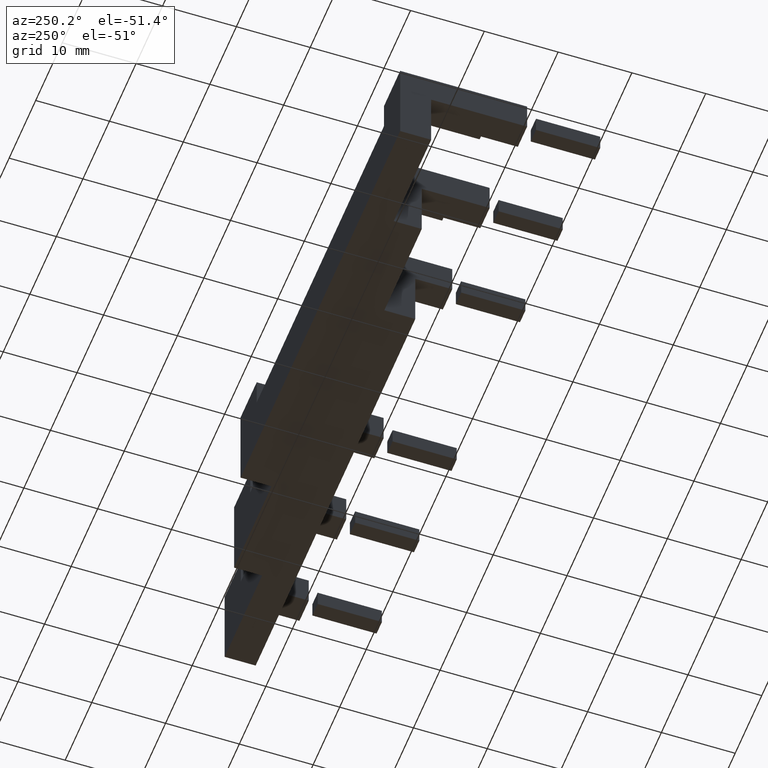
[diagram: clean part render]
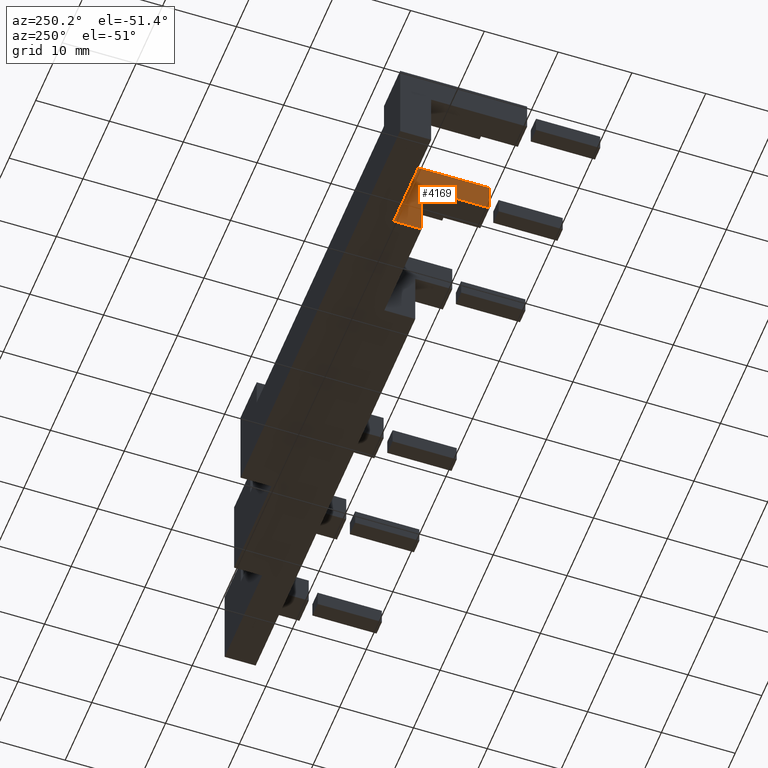
[diagram: same view with one face highlighted and labeled with its STEP entity id]
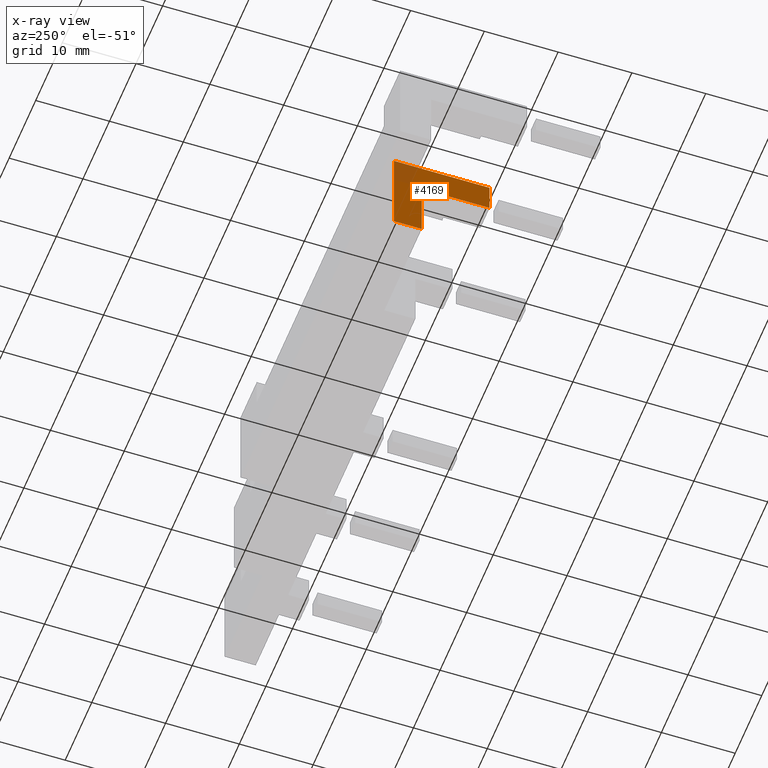
[diagram: x-ray of the same camera — body ghosted, the highlighted face saturated]
A machine part, auxiliary view. The second image highlights one B-rep face of the part: STEP entity #4169.
The next image is the same camera in x-ray: the body ghosted, the highlighted face saturated — about 13% of this face is hidden behind the body in this view.
In plain terms, the highlighted planar face has unit normal (-1, 0, 0).
Its self-contained STEP definition (entity closure, byte-faithful):
#2577=CARTESIAN_POINT('',(14.099999999999852,2.700062E-013,103.99999999999196));
#2578=VERTEX_POINT('',#2577);
#2609=CARTESIAN_POINT('',(14.099999999999682,2.842171E-013,95.79999999999194));
#2610=VERTEX_POINT('',#2609);
#2617=CARTESIAN_POINT('',(14.099999999999859,2.702054E-013,103.99999999999197));
#2618=DIRECTION('',(0.0,0.0,-1.0));
#2619=VECTOR('',#2618,8.200000000000003);
#2620=LINE('',#2617,#2619);
#2621=EDGE_CURVE('',#2578,#2610,#2620,.T.);
#2711=CARTESIAN_POINT('',(14.099999999999763,-3.799999999999216,95.799999999991954));
#2712=VERTEX_POINT('',#2711);
#2719=CARTESIAN_POINT('',(14.099999999999756,-3.799999999999216,95.79999999999194));
#2720=DIRECTION('',(0.0,1.0,0.0));
#2721=VECTOR('',#2720,3.799999999999487);
#2722=LINE('',#2719,#2721);
#2723=EDGE_CURVE('',#2712,#2610,#2722,.T.);
#4105=CARTESIAN_POINT('',(14.100000000000218,-12.999999999991548,108.09999999999192));
#4106=VERTEX_POINT('',#4105);
#4113=CARTESIAN_POINT('',(14.100000000000135,-12.999999999991548,103.99999999999196));
#4114=VERTEX_POINT('',#4113);
#4115=CARTESIAN_POINT('',(14.100000000000135,-12.999999999991548,103.99999999999196));
#4116=DIRECTION('',(0.0,0.0,1.0));
#4117=VECTOR('',#4116,4.099999999999994);
#4118=LINE('',#4115,#4117);
#4119=EDGE_CURVE('',#4114,#4106,#4118,.T.);
#4131=CARTESIAN_POINT('',(14.100000000000135,-12.999999999991548,103.99999999999196));
#4132=DIRECTION('',(-1.0,0.0,0.0));
#4133=DIRECTION('',(0.0,0.0,1.0));
#4134=AXIS2_PLACEMENT_3D('',#4131,#4132,#4133);
#4135=PLANE('',#4134);
#4136=CARTESIAN_POINT('',(14.099999999999946,2.557954E-013,108.09999999999194));
#4137=VERTEX_POINT('',#4136);
#4138=CARTESIAN_POINT('',(14.10000000000022,-12.999999999991562,108.09999999999194));
#4139=DIRECTION('',(0.0,1.0,0.0));
#4140=VECTOR('',#4139,12.999999999991818);
#4141=LINE('',#4138,#4140);
#4142=EDGE_CURVE('',#4106,#4137,#4141,.T.);
#4143=ORIENTED_EDGE('',*,*,#4142,.T.);
#4144=CARTESIAN_POINT('',(14.099999999999852,2.700062E-013,103.99999999999196));
#4145=DIRECTION('',(0.0,0.0,1.0));
#4146=VECTOR('',#4145,4.099999999999994);
#4147=LINE('',#4144,#4146);
#4148=EDGE_CURVE('',#2578,#4137,#4147,.T.);
#4149=ORIENTED_EDGE('',*,*,#4148,.F.);
#4150=ORIENTED_EDGE('',*,*,#2621,.T.);
#4151=ORIENTED_EDGE('',*,*,#2723,.F.);
#4152=CARTESIAN_POINT('',(14.099999999999937,-3.799999999999216,103.99999999999196));
#4153=VERTEX_POINT('',#4152);
#4154=CARTESIAN_POINT('',(14.099999999999939,-3.799999999999216,103.99999999999197));
#4155=DIRECTION('',(0.0,0.0,-1.0));
#4156=VECTOR('',#4155,8.200000000000003);
#4157=LINE('',#4154,#4156);
#4158=EDGE_CURVE('',#4153,#2712,#4157,.T.);
#4159=ORIENTED_EDGE('',*,*,#4158,.F.);
#4160=CARTESIAN_POINT('',(14.099999999999932,-3.799999999999216,103.99999999999196));
#4161=DIRECTION('',(0.0,-1.0,0.0));
#4162=VECTOR('',#4161,9.199999999992333);
#4163=LINE('',#4160,#4162);
#4164=EDGE_CURVE('',#4153,#4114,#4163,.T.);
#4165=ORIENTED_EDGE('',*,*,#4164,.T.);
#4166=ORIENTED_EDGE('',*,*,#4119,.T.);
#4167=EDGE_LOOP('',(#4143,#4149,#4150,#4151,#4159,#4165,#4166));
#4168=FACE_OUTER_BOUND('',#4167,.T.);
#4169=ADVANCED_FACE('',(#4168),#4135,.T.);